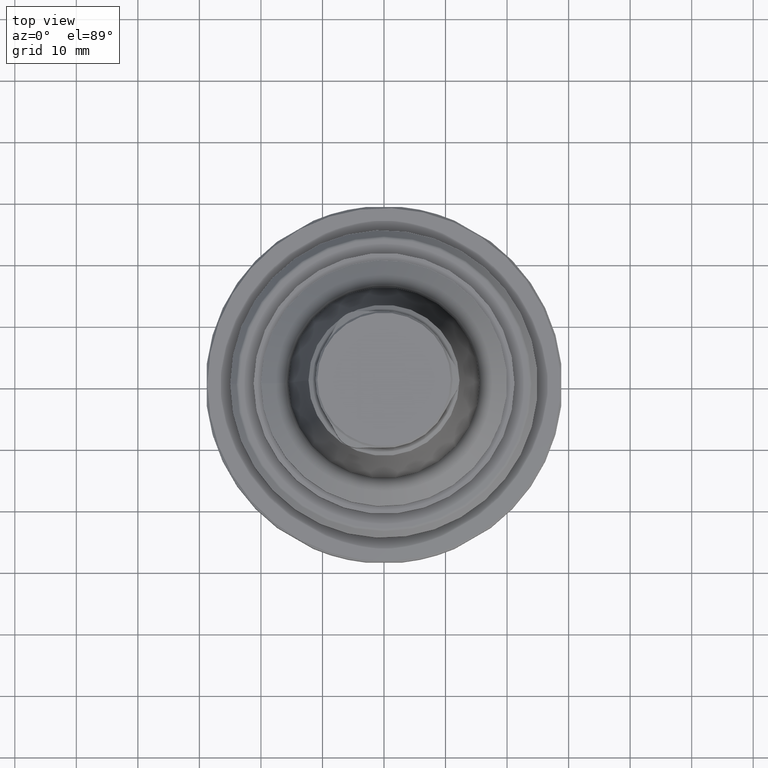
[diagram: clean part render]
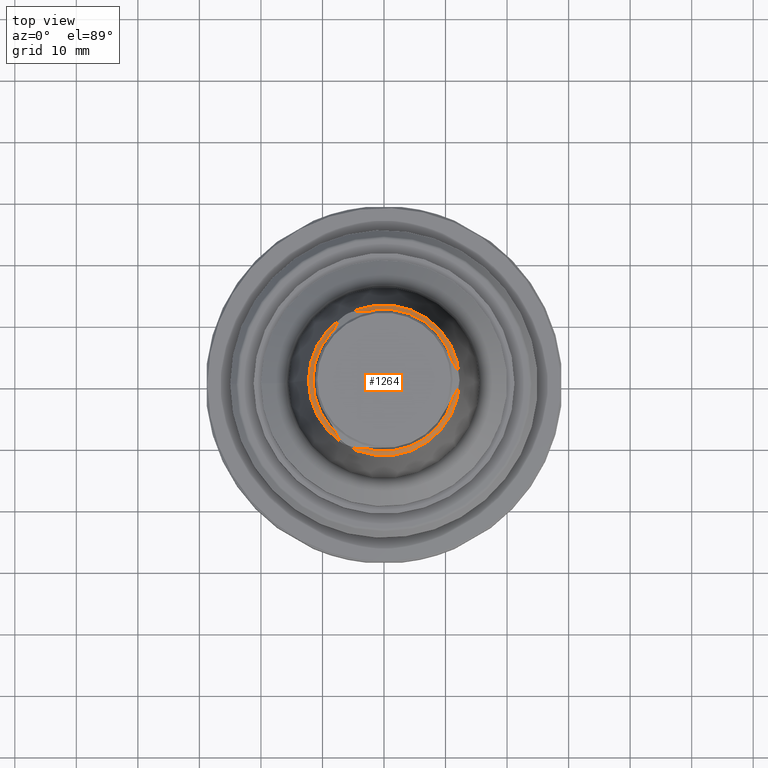
[diagram: same view with one face highlighted and labeled with its STEP entity id]
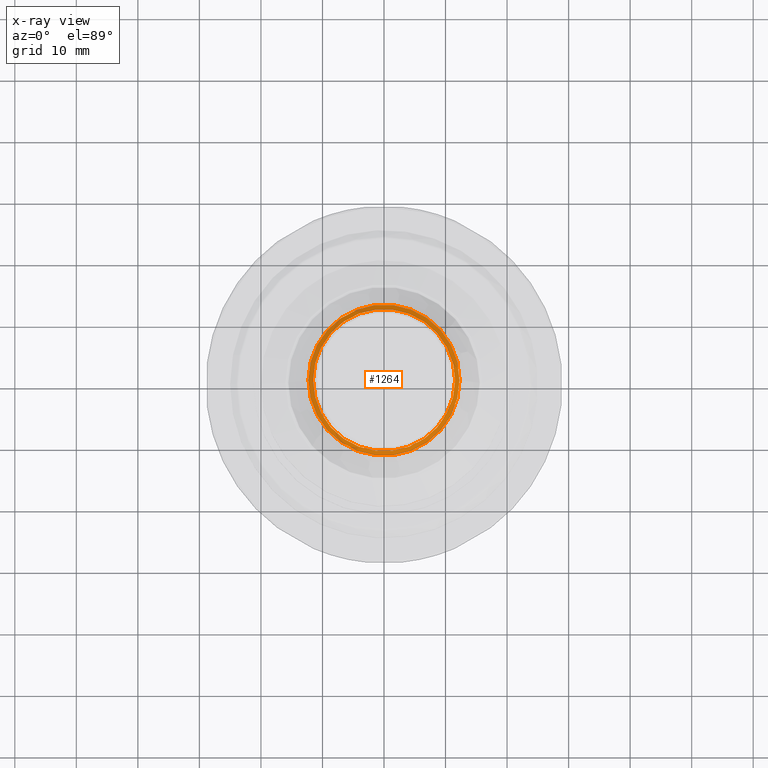
[diagram: x-ray of the same camera — body ghosted, the highlighted face saturated]
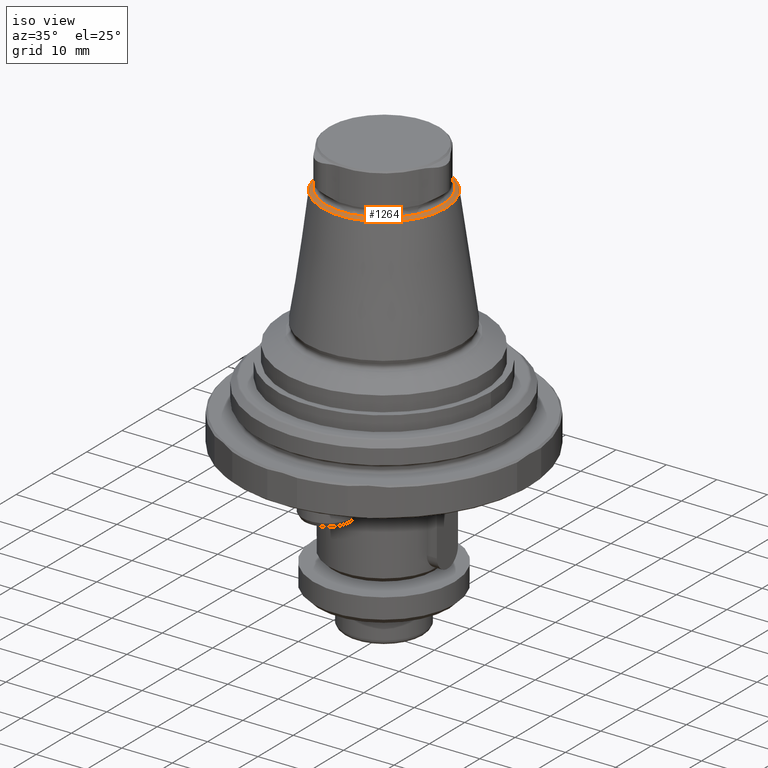
[diagram: same view with one face highlighted and labeled with its STEP entity id]
A machine part, top view. The second image highlights one B-rep face of the part: STEP entity #1264.
The next image is the same camera in x-ray: the body ghosted, the highlighted face saturated — about 0% of this face is hidden behind the body in this view.
A second angle (iso view) of the same face is appended — the face is thin or edge-on in the first view.
In plain terms, the highlighted conical surface has half-angle 60 deg.
Its self-contained STEP definition (entity closure, byte-faithful):
#193=CONICAL_SURFACE('',#1412,12.2706905250473,1.0471975511966);
#389=ORIENTED_EDGE('',*,*,#634,.T.);
#390=ORIENTED_EDGE('',*,*,#635,.F.);
#634=EDGE_CURVE('',#773,#773,#870,.T.);
#635=EDGE_CURVE('',#774,#774,#871,.T.);
#773=VERTEX_POINT('',#2194);
#774=VERTEX_POINT('',#2197);
#870=CIRCLE('',#1411,11.55);
#871=CIRCLE('',#1413,12.2706905250473);
#978=EDGE_LOOP('',(#389));
#979=EDGE_LOOP('',(#390));
#1113=FACE_BOUND('',#978,.T.);
#1114=FACE_BOUND('',#979,.T.);
#1264=ADVANCED_FACE('',(#1113,#1114),#193,.T.);
#1411=AXIS2_PLACEMENT_3D('',#2193,#1703,#1704);
#1412=AXIS2_PLACEMENT_3D('',#2195,#1705,#1706);
#1413=AXIS2_PLACEMENT_3D('',#2196,#1707,#1708);
#1703=DIRECTION('',(2.49783760049311E-16,-7.79579225983866E-33,-1.));
#1704=DIRECTION('',(-1.,6.12303176911188E-17,-2.4978376004931E-16));
#1705=DIRECTION('',(2.49783760049311E-16,-7.79579225983866E-33,-1.));
#1706=DIRECTION('',(-1.,6.12303176911188E-17,-2.4978376004931E-16));
#1707=DIRECTION('',(2.49783760049311E-16,-7.79579225983866E-33,-1.));
#1708=DIRECTION('',(-1.,6.12303176911188E-17,-2.4978376004931E-16));
#2193=CARTESIAN_POINT('',(-3.33681346410419E-15,7.16129815855033E-31,38.9650908686385));
#2194=CARTESIAN_POINT('',(-11.55,7.07210169332423E-16,38.9650908686385));
#2195=CARTESIAN_POINT('',(-3.23288072241349E-15,7.12886057881911E-31,38.549));
#2196=CARTESIAN_POINT('',(-3.23288072241349E-15,7.12886057881911E-31,38.549));
#2197=CARTESIAN_POINT('',(-12.2706905250473,7.51338279138048E-16,38.549));